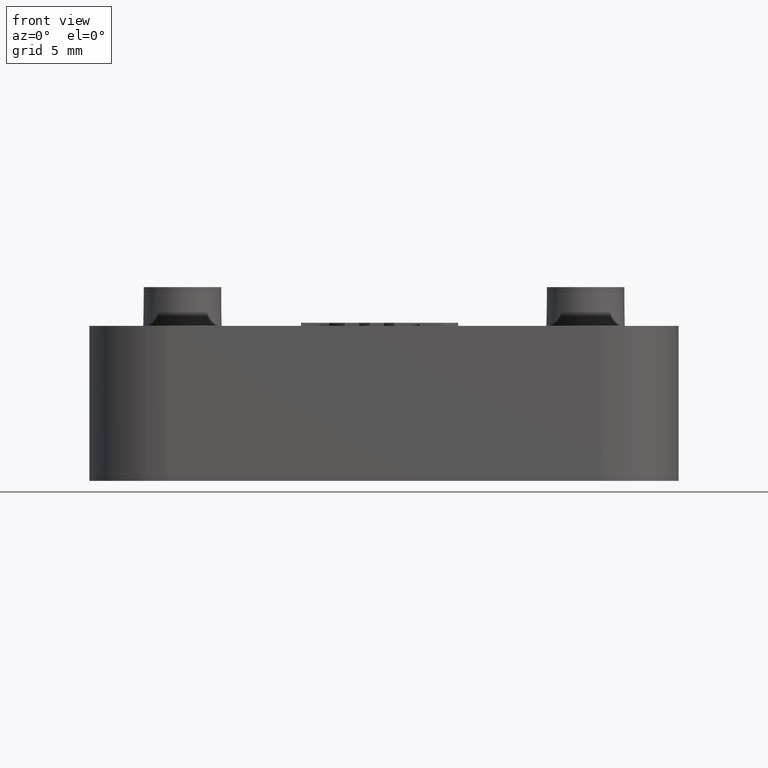
[diagram: clean part render]
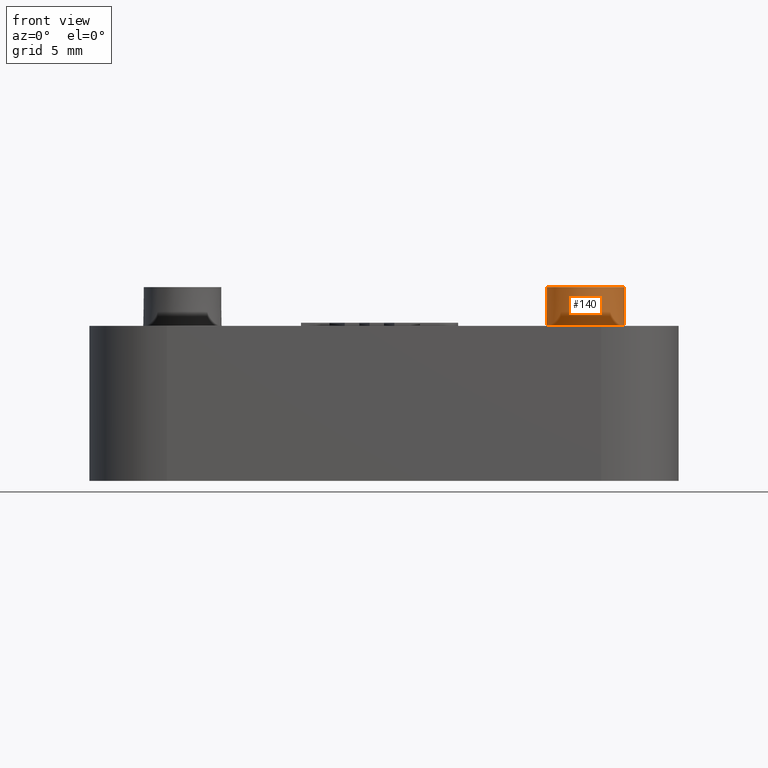
[diagram: same view with one face highlighted and labeled with its STEP entity id]
A machine part, front view. The second image highlights one B-rep face of the part: STEP entity #140.
In plain terms, the highlighted conical surface has half-angle 1 deg.
Its self-contained STEP definition (entity closure, byte-faithful):
#140 = ADVANCED_FACE( '', ( #467, #468 ), #469, .T. );
#467 = FACE_OUTER_BOUND( '', #955, .T. );
#468 = FACE_BOUND( '', #956, .T. );
#469 = CONICAL_SURFACE( '', #957, 2.50000000000000, 0.0174532925199433 );
#955 = EDGE_LOOP( '', ( #1970 ) );
#956 = EDGE_LOOP( '', ( #1971 ) );
#957 = AXIS2_PLACEMENT_3D( '', #1972, #1973, #1974 );
#1970 = ORIENTED_EDGE( '', *, *, #3112, .F. );
#1971 = ORIENTED_EDGE( '', *, *, #3510, .T. );
#1972 = CARTESIAN_POINT( '', ( 13.0000000000000, -0.000165124598847324, 12.5000000000000 ) );
#1973 = DIRECTION( '', ( 0.000000000000000, -6.12303176911189E-017, -1.00000000000000 ) );
#1974 = DIRECTION( '', ( 0.000000000000000, 1.00000000000000, -6.12303176911189E-017 ) );
#3112 = EDGE_CURVE( '', #3700, #3700, #3701, .T. );
#3510 = EDGE_CURVE( '', #4457, #4457, #4458, .T. );
#3700 = VERTEX_POINT( '', #4663 );
#3701 = CIRCLE( '', #4664, 2.54363766232054 );
#4457 = VERTEX_POINT( '', #5808 );
#4458 = CIRCLE( '', #5809, 2.50000000000000 );
#4663 = CARTESIAN_POINT( '', ( 13.0000000000000, 2.54347253772170, 9.99999999999999 ) );
#4664 = AXIS2_PLACEMENT_3D( '', #6138, #6139, #6140 );
#5808 = CARTESIAN_POINT( '', ( 15.5000000000000, -0.000165124598847324, 12.5000000000000 ) );
#5809 = AXIS2_PLACEMENT_3D( '', #6556, #6557, #6558 );
#6138 = CARTESIAN_POINT( '', ( 13.0000000000000, -0.000165124598847477, 9.99999999999999 ) );
#6139 = DIRECTION( '', ( 0.000000000000000, -6.12303176911189E-017, -1.00000000000000 ) );
#6140 = DIRECTION( '', ( 0.000000000000000, 1.00000000000000, -6.12303176911189E-017 ) );
#6556 = CARTESIAN_POINT( '', ( 13.0000000000000, -0.000165124598847324, 12.5000000000000 ) );
#6557 = DIRECTION( '', ( 0.000000000000000, -6.12303176911189E-017, -1.00000000000000 ) );
#6558 = DIRECTION( '', ( 1.00000000000000, 0.000000000000000, 0.000000000000000 ) );